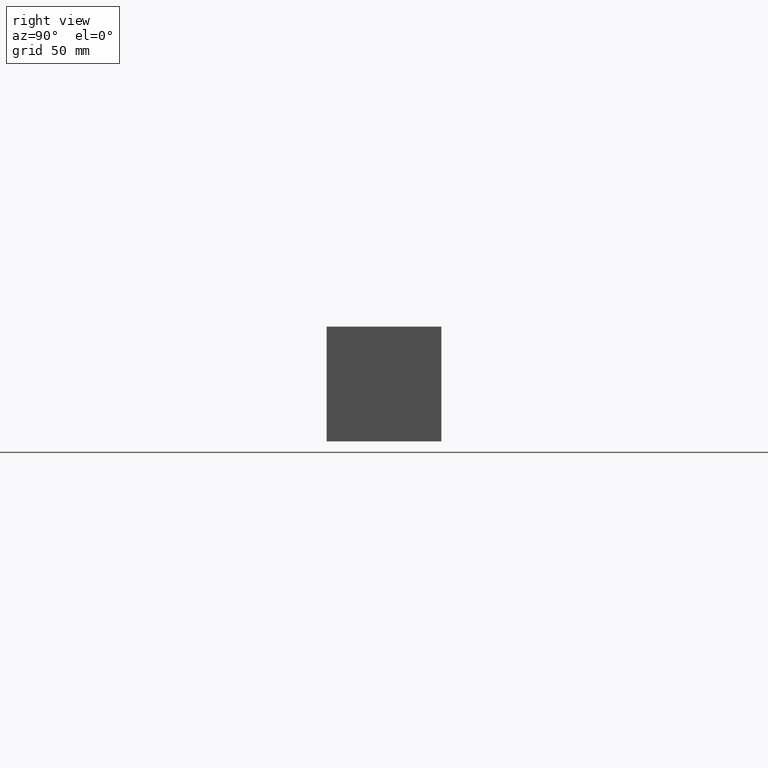
[diagram: clean part render]
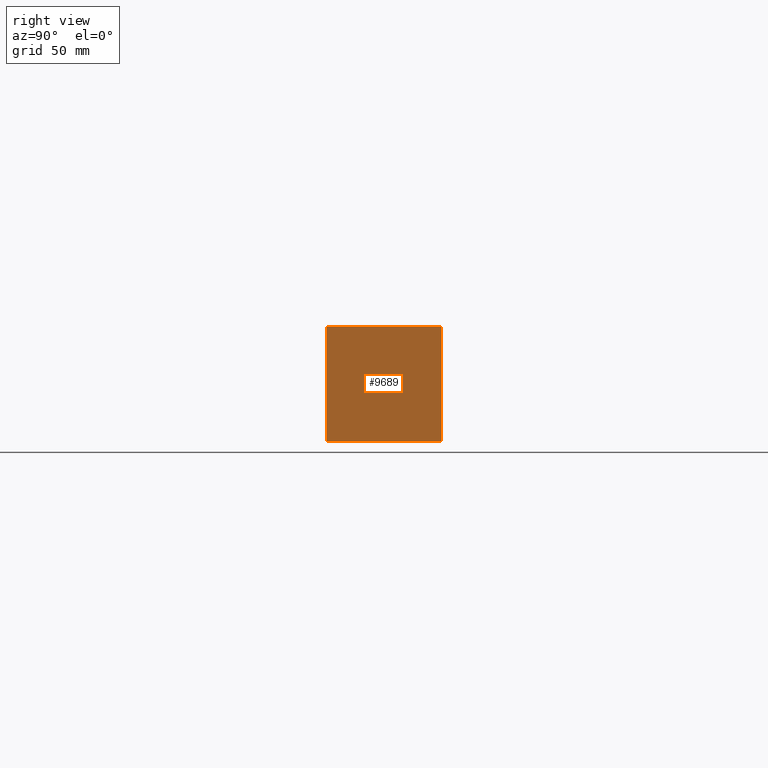
[diagram: same view with one face highlighted and labeled with its STEP entity id]
A machine part, right view. The second image highlights one B-rep face of the part: STEP entity #9689.
In plain terms, the highlighted planar face has unit normal (1, 0, 0).
Its self-contained STEP definition (entity closure, byte-faithful):
#1418=FACE_OUTER_BOUND('',#2004,.T.);
#2004=EDGE_LOOP('',(#8588,#8589,#8590,#8591));
#2288=LINE('',#14849,#3104);
#2838=LINE('',#16830,#3654);
#2839=LINE('',#16833,#3655);
#2840=LINE('',#16834,#3656);
#3104=VECTOR('',#10878,10.);
#3654=VECTOR('',#12820,10.);
#3655=VECTOR('',#12823,10.);
#3656=VECTOR('',#12824,10.);
#3949=VERTEX_POINT('',#14846);
#3950=VERTEX_POINT('',#14848);
#4557=VERTEX_POINT('',#16828);
#4558=VERTEX_POINT('',#16832);
#4995=EDGE_CURVE('',#3949,#3950,#2288,.T.);
#5914=EDGE_CURVE('',#4557,#3950,#2838,.T.);
#5915=EDGE_CURVE('',#4558,#4557,#2839,.T.);
#5916=EDGE_CURVE('',#4558,#3949,#2840,.T.);
#8588=ORIENTED_EDGE('',*,*,#5915,.T.);
#8589=ORIENTED_EDGE('',*,*,#5914,.T.);
#8590=ORIENTED_EDGE('',*,*,#4995,.F.);
#8591=ORIENTED_EDGE('',*,*,#5916,.F.);
#8882=PLANE('',#10472);
#9689=ADVANCED_FACE('',(#1418),#8882,.T.);
#10472=AXIS2_PLACEMENT_3D('',#16831,#12821,#12822);
#10878=DIRECTION('',(0.,1.,0.));
#12820=DIRECTION('',(0.,0.,1.));
#12821=DIRECTION('center_axis',(1.,0.,0.));
#12822=DIRECTION('ref_axis',(0.,1.,0.));
#12823=DIRECTION('',(0.,1.,0.));
#12824=DIRECTION('',(0.,0.,1.));
#14846=CARTESIAN_POINT('',(276.225,0.,44.45));
#14848=CARTESIAN_POINT('',(276.225,44.45,44.45));
#14849=CARTESIAN_POINT('',(276.225,0.,44.45));
#16828=CARTESIAN_POINT('',(276.225,44.45,0.));
#16830=CARTESIAN_POINT('',(276.225,44.45,0.));
#16831=CARTESIAN_POINT('Origin',(276.225,0.,0.));
#16832=CARTESIAN_POINT('',(276.225,0.,0.));
#16833=CARTESIAN_POINT('',(276.225,0.,0.));
#16834=CARTESIAN_POINT('',(276.225,0.,0.));